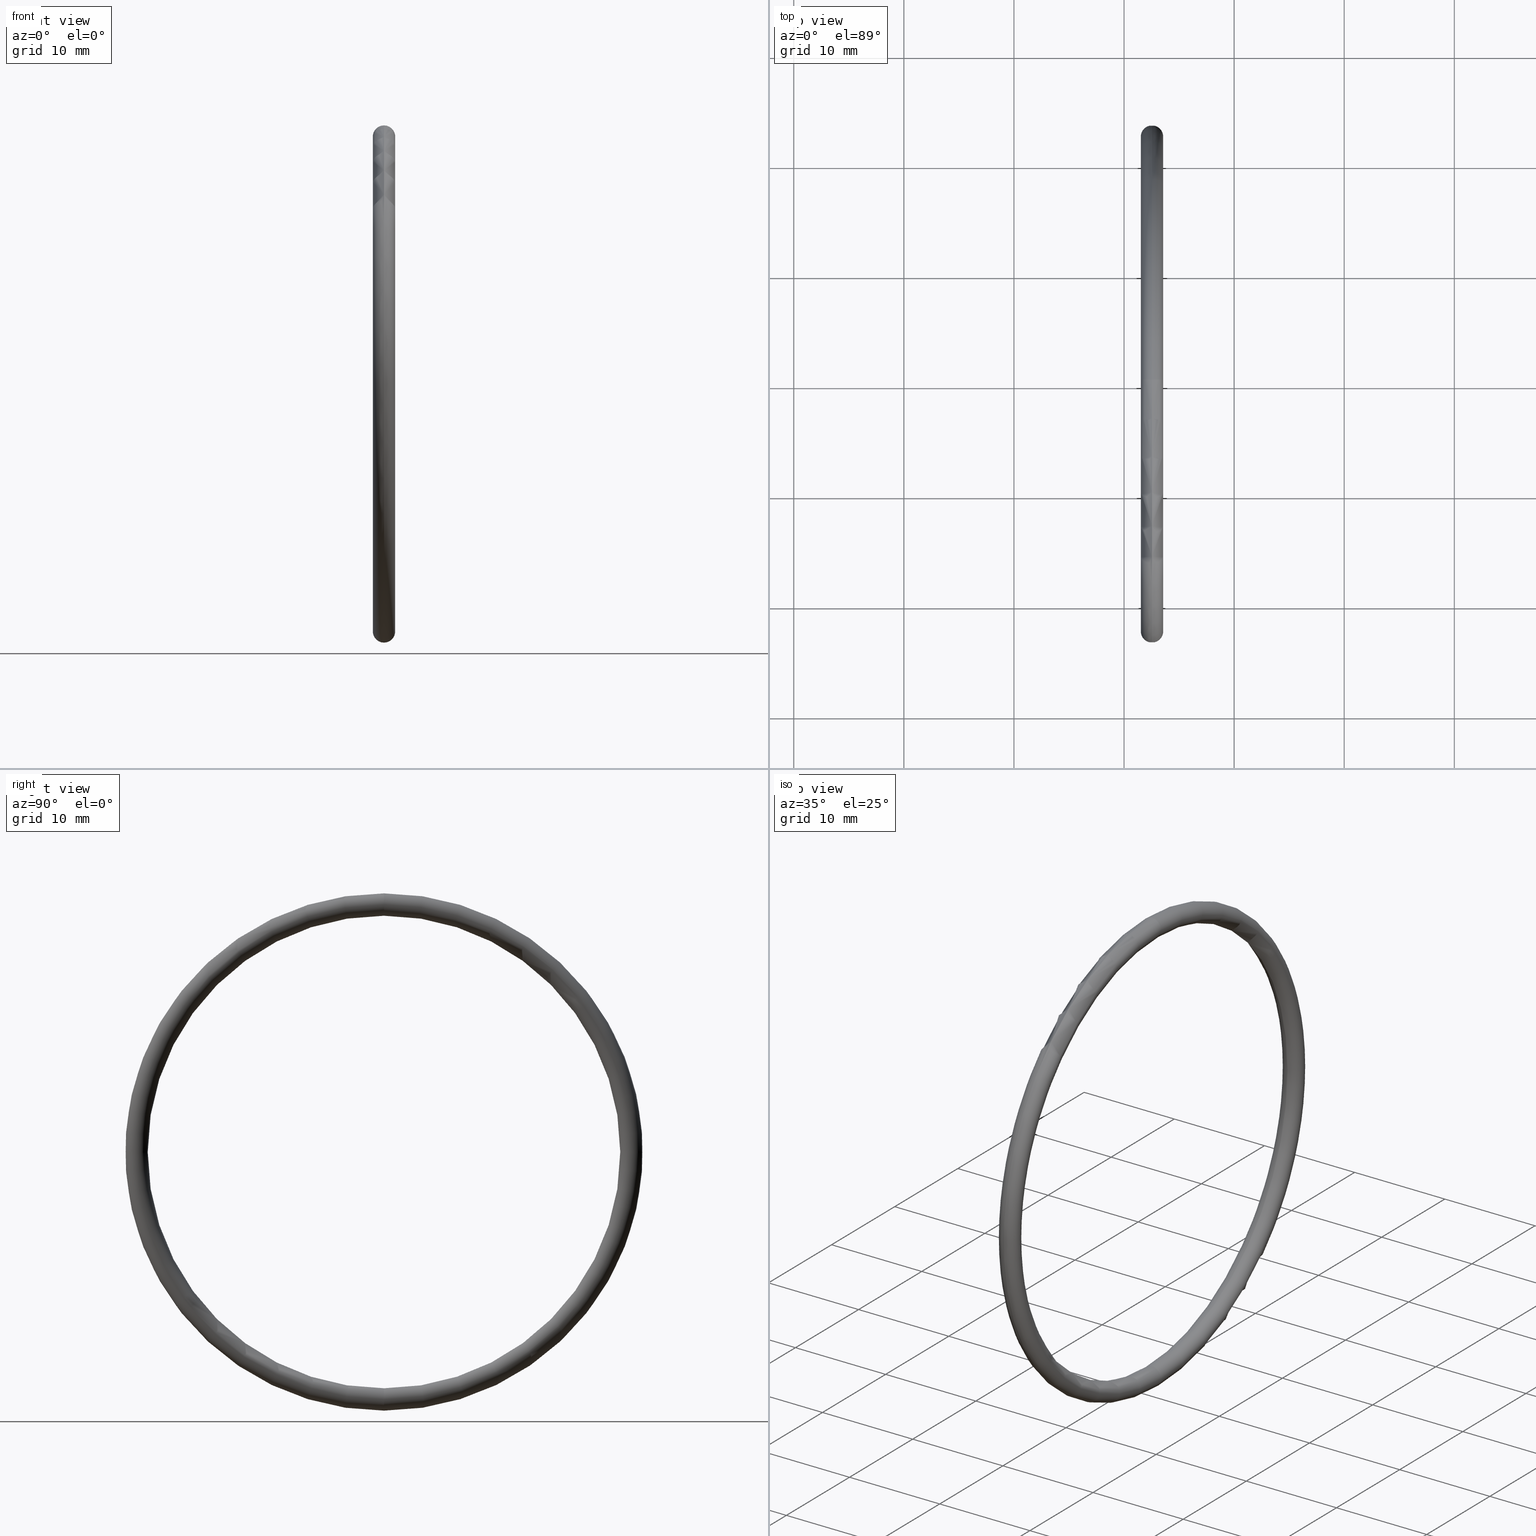
[diagram: canonical four-view strip — front | top / right | iso, engineering-drawing reading convention]
A machine part, canonical four-view strip (front | top / right | iso — engineering-drawing reading convention). The complete STEP part file that produces these views, byte-faithful:
ISO-10303-21;
HEADER;
FILE_DESCRIPTION (( 'STEP AP203' ),
    '1' );
FILE_NAME ('OM-50-BN.STEP',
    '2008-03-29T08:08:24',
    ( 'Baystate-05' ),
    ( 'BayState InfoTech' ),
    'SwSTEP 2.0',
    'SolidWorks 2007',
    '' );
FILE_SCHEMA (( 'CONFIG_CONTROL_DESIGN' ));
ENDSEC;

DATA;
#1 = DIRECTION ( 'NONE',  ( 0.0000000000000000000, 0.0000000000000000000, -1.000000000000000000 ) ) ;
#2 = DIRECTION ( 'NONE',  ( 0.0000000000000000000, -1.000000000000000000, 0.0000000000000000000 ) ) ;
#3 = AXIS2_PLACEMENT_3D ( 'NONE', #5, #2, #1 ) ;
#4 = CIRCLE ( 'NONE', #3, 0.03999999999999998000 ) ;
#5 = CARTESIAN_POINT ( 'NONE',  ( 0.1000000000000001300, 0.0000000000000000000, 0.8850000000000000100 ) ) ;
#6 = DIRECTION ( 'NONE',  ( -1.000000000000000000, 0.0000000000000000000, 0.0000000000000000000 ) ) ;
#7 = CARTESIAN_POINT ( 'NONE',  ( 0.1000000000000001300, 0.0000000000000000000, 0.0000000000000000000 ) ) ;
#8 = AXIS2_PLACEMENT_3D ( 'NONE', #7, #6, #9 ) ;
#9 = DIRECTION ( 'NONE',  ( 0.0000000000000000000, 0.0000000000000000000, 1.000000000000000000 ) ) ;
#10 = CARTESIAN_POINT ( 'NONE',  ( 0.1000000000000001300, 0.0000000000000000000, 0.8449999999999999700 ) ) ;
#11 = CARTESIAN_POINT ( 'NONE',  ( 0.1000000000000001300, 0.0000000000000000000, 0.9249999999999999300 ) ) ;
#12 = CIRCLE ( 'NONE', #17, 0.8449999999999999700 ) ;
#13 = DIRECTION ( 'NONE',  ( 0.0000000000000000000, 0.0000000000000000000, 1.000000000000000000 ) ) ;
#14 = CARTESIAN_POINT ( 'NONE',  ( 0.1000000000000001300, 0.0000000000000000000, 0.0000000000000000000 ) ) ;
#15 = DIRECTION ( 'NONE',  ( 0.0000000000000000000, 1.000000000000000000, 1.224646799147353200E-016 ) ) ;
#16 = DIRECTION ( 'NONE',  ( -1.000000000000000000, 0.0000000000000000000, 0.0000000000000000000 ) ) ;
#17 = AXIS2_PLACEMENT_3D ( 'NONE', #14, #16, #13 ) ;
#18 = CARTESIAN_POINT ( 'NONE',  ( 0.1000000000000001300, 1.083812417245407700E-016, -0.8850000000000000100 ) ) ;
#19 = DIRECTION ( 'NONE',  ( 0.0000000000000000000, -1.224646799147354900E-016, 1.000000000000000000 ) ) ;
#20 = AXIS2_PLACEMENT_3D ( 'NONE', #18, #15, #19 ) ;
#21 = AXIS2_PLACEMENT_3D ( 'NONE', #22, #24, #23 ) ;
#22 = CARTESIAN_POINT ( 'NONE',  ( 0.1000000000000001300, 0.0000000000000000000, 0.0000000000000000000 ) ) ;
#23 = DIRECTION ( 'NONE',  ( 0.0000000000000000000, 0.0000000000000000000, 1.000000000000000000 ) ) ;
#24 = DIRECTION ( 'NONE',  ( -1.000000000000000000, 0.0000000000000000000, 0.0000000000000000000 ) ) ;
#25 =( NAMED_UNIT ( * ) PLANE_ANGLE_UNIT ( ) SI_UNIT ( $, .RADIAN. ) );
#26 =( NAMED_UNIT ( * ) SI_UNIT ( $, .STERADIAN. ) SOLID_ANGLE_UNIT ( ) );
#27 = DIRECTION ( 'NONE',  ( 0.0000000000000000000, 0.0000000000000000000, 1.000000000000000000 ) ) ;
#28 = DIRECTION ( 'NONE',  ( -1.000000000000000000, 0.0000000000000000000, 0.0000000000000000000 ) ) ;
#29 = TOROIDAL_SURFACE ( 'NONE', #33, 0.8850000000000000100, 0.03999999999999997300 ) ;
#30 = UNCERTAINTY_MEASURE_WITH_UNIT (LENGTH_MEASURE( 1.000000000000000100E-005 ), #57, 'distance_accuracy_value', 'NONE');
#31 = FACE_OUTER_BOUND ( 'NONE', #180, .T. ) ;
#32 = CARTESIAN_POINT ( 'NONE',  ( 0.1000000000000001300, 0.0000000000000000000, 0.0000000000000000000 ) ) ;
#33 = AXIS2_PLACEMENT_3D ( 'NONE', #32, #28, #27 ) ;
#34 =( GEOMETRIC_REPRESENTATION_CONTEXT ( 3 ) GLOBAL_UNCERTAINTY_ASSIGNED_CONTEXT ( ( #30 ) ) GLOBAL_UNIT_ASSIGNED_CONTEXT ( ( #57, #25, #26 ) ) REPRESENTATION_CONTEXT ( 'NONE', 'WORKASPACE' ) );
#35 = ADVANCED_BREP_SHAPE_REPRESENTATION ( 'OM-50-BN', ( #188, #122 ), #34 ) ;
#36 = AXIS2_PLACEMENT_3D ( 'NONE', #38, #37, #46 ) ;
#37 = DIRECTION ( 'NONE',  ( -1.000000000000000000, 0.0000000000000000000, 0.0000000000000000000 ) ) ;
#38 = CARTESIAN_POINT ( 'NONE',  ( 0.1000000000000001300, 0.0000000000000000000, 0.0000000000000000000 ) ) ;
#39 = AXIS2_PLACEMENT_3D ( 'NONE', #44, #43, #42 ) ;
#40 = CIRCLE ( 'NONE', #39, 0.8449999999999999700 ) ;
#41 = CIRCLE ( 'NONE', #36, 0.9249999999999999300 ) ;
#42 = DIRECTION ( 'NONE',  ( 0.0000000000000000000, 0.0000000000000000000, 1.000000000000000000 ) ) ;
#43 = DIRECTION ( 'NONE',  ( -1.000000000000000000, 0.0000000000000000000, 0.0000000000000000000 ) ) ;
#44 = CARTESIAN_POINT ( 'NONE',  ( 0.1000000000000001300, 0.0000000000000000000, 0.0000000000000000000 ) ) ;
#45 = FACE_OUTER_BOUND ( 'NONE', #190, .T. ) ;
#46 = DIRECTION ( 'NONE',  ( 0.0000000000000000000, 0.0000000000000000000, 1.000000000000000000 ) ) ;
#47 = CIRCLE ( 'NONE', #20, 0.03999999999999998000 ) ;
#48 = DIRECTION ( 'NONE',  ( 0.0000000000000000000, 0.0000000000000000000, 1.000000000000000000 ) ) ;
#49 = DIRECTION ( 'NONE',  ( -1.000000000000000000, 0.0000000000000000000, 0.0000000000000000000 ) ) ;
#50 = CARTESIAN_POINT ( 'NONE',  ( 0.1000000000000001300, 0.0000000000000000000, 0.0000000000000000000 ) ) ;
#51 = TOROIDAL_SURFACE ( 'NONE', #52, 0.8850000000000000100, 0.03999999999999997300 ) ;
#52 = AXIS2_PLACEMENT_3D ( 'NONE', #50, #49, #48 ) ;
#53 = TOROIDAL_SURFACE ( 'NONE', #21, 0.8850000000000000100, 0.03999999999999997300 ) ;
#54 = FACE_OUTER_BOUND ( 'NONE', #187, .T. ) ;
#55 = CARTESIAN_POINT ( 'NONE',  ( 0.1000000000000001300, 1.034826545279513500E-016, -0.8449999999999999700 ) ) ;
#56 = CARTESIAN_POINT ( 'NONE',  ( 0.1000000000000001300, 1.132798289211301800E-016, -0.9249999999999999300 ) ) ;
#57 =( CONVERSION_BASED_UNIT ( 'INCH', #58 ) LENGTH_UNIT ( ) NAMED_UNIT ( #59 ) );
#58 = LENGTH_MEASURE_WITH_UNIT ( LENGTH_MEASURE( 0.02539999999999999900 ), #60 );
#59 = DIMENSIONAL_EXPONENTS ( 1.000000000000000000, 0.0000000000000000000, 0.0000000000000000000, 0.0000000000000000000, 0.0000000000000000000, 0.0000000000000000000, 0.0000000000000000000 ) ;
#60 =( LENGTH_UNIT ( ) NAMED_UNIT ( * ) SI_UNIT ( $, .METRE. ) );
#61 = PRODUCT_DEFINITION_SHAPE ( 'NONE', 'NONE',  #128 ) ;
#62 = PRODUCT_RELATED_PRODUCT_CATEGORY ( 'detail', '', ( #138 ) ) ;
#63 = CC_DESIGN_SECURITY_CLASSIFICATION ( #84, ( #103 ) ) ;
#64 = CC_DESIGN_APPROVAL ( #72, ( #84 ) ) ;
#65 = APPROVAL_DATE_TIME ( #66, #72 ) ;
#66 = DATE_AND_TIME ( #67, #68 ) ;
#67 = CALENDAR_DATE ( 2008, 29, 3 ) ;
#68 = LOCAL_TIME ( 13, 38, 24.00000000000000000, #69 ) ;
#69 = COORDINATED_UNIVERSAL_TIME_OFFSET ( 5, 30, .AHEAD. ) ;
#70 = APPROVAL_PERSON_ORGANIZATION ( #74, #72, #71 ) ;
#71 = APPROVAL_ROLE ( '' ) ;
#72 = APPROVAL ( #73, 'UNSPECIFIED' ) ;
#73 = APPROVAL_STATUS ( 'not_yet_approved' ) ;
#74 = PERSON_AND_ORGANIZATION ( #137, #136 ) ;
#75 = CC_DESIGN_DATE_AND_TIME_ASSIGNMENT ( #77, #76, ( #84 ) ) ;
#76 = DATE_TIME_ROLE ( 'classification_date' ) ;
#77 = DATE_AND_TIME ( #78, #79 ) ;
#78 = CALENDAR_DATE ( 2008, 29, 3 ) ;
#79 = LOCAL_TIME ( 13, 38, 24.00000000000000000, #80 ) ;
#80 = COORDINATED_UNIVERSAL_TIME_OFFSET ( 5, 30, .AHEAD. ) ;
#81 = CC_DESIGN_PERSON_AND_ORGANIZATION_ASSIGNMENT ( #83, #82, ( #84 ) ) ;
#82 = PERSON_AND_ORGANIZATION_ROLE ( 'classification_officer' ) ;
#83 = PERSON_AND_ORGANIZATION ( #137, #136 ) ;
#84 = SECURITY_CLASSIFICATION ( '', '', #85 ) ;
#85 = SECURITY_CLASSIFICATION_LEVEL ( 'unclassified' ) ;
#86 = CC_DESIGN_PERSON_AND_ORGANIZATION_ASSIGNMENT ( #88, #87, ( #103 ) ) ;
#87 = PERSON_AND_ORGANIZATION_ROLE ( 'design_supplier' ) ;
#88 = PERSON_AND_ORGANIZATION ( #137, #136 ) ;
#89 = CC_DESIGN_PERSON_AND_ORGANIZATION_ASSIGNMENT ( #91, #90, ( #103 ) ) ;
#90 = PERSON_AND_ORGANIZATION_ROLE ( 'creator' ) ;
#91 = PERSON_AND_ORGANIZATION ( #137, #136 ) ;
#92 = CC_DESIGN_APPROVAL ( #100, ( #103 ) ) ;
#93 = APPROVAL_DATE_TIME ( #94, #100 ) ;
#94 = DATE_AND_TIME ( #95, #96 ) ;
#95 = CALENDAR_DATE ( 2008, 29, 3 ) ;
#96 = LOCAL_TIME ( 13, 38, 24.00000000000000000, #97 ) ;
#97 = COORDINATED_UNIVERSAL_TIME_OFFSET ( 5, 30, .AHEAD. ) ;
#98 = APPROVAL_PERSON_ORGANIZATION ( #102, #100, #99 ) ;
#99 = APPROVAL_ROLE ( '' ) ;
#100 = APPROVAL ( #101, 'UNSPECIFIED' ) ;
#101 = APPROVAL_STATUS ( 'not_yet_approved' ) ;
#102 = PERSON_AND_ORGANIZATION ( #137, #136 ) ;
#103 = PRODUCT_DEFINITION_FORMATION_WITH_SPECIFIED_SOURCE ( 'ANY', '', #138, .NOT_KNOWN. ) ;
#104 = CC_DESIGN_DATE_AND_TIME_ASSIGNMENT ( #106, #105, ( #128 ) ) ;
#105 = DATE_TIME_ROLE ( 'creation_date' ) ;
#106 = DATE_AND_TIME ( #107, #108 ) ;
#107 = CALENDAR_DATE ( 2008, 29, 3 ) ;
#108 = LOCAL_TIME ( 13, 38, 24.00000000000000000, #109 ) ;
#109 = COORDINATED_UNIVERSAL_TIME_OFFSET ( 5, 30, .AHEAD. ) ;
#110 = CC_DESIGN_PERSON_AND_ORGANIZATION_ASSIGNMENT ( #112, #111, ( #128 ) ) ;
#111 = PERSON_AND_ORGANIZATION_ROLE ( 'creator' ) ;
#112 = PERSON_AND_ORGANIZATION ( #137, #136 ) ;
#113 = CC_DESIGN_APPROVAL ( #121, ( #128 ) ) ;
#114 = APPROVAL_DATE_TIME ( #115, #121 ) ;
#115 = DATE_AND_TIME ( #116, #117 ) ;
#116 = CALENDAR_DATE ( 2008, 29, 3 ) ;
#117 = LOCAL_TIME ( 13, 38, 24.00000000000000000, #118 ) ;
#118 = COORDINATED_UNIVERSAL_TIME_OFFSET ( 5, 30, .AHEAD. ) ;
#119 = APPROVAL_PERSON_ORGANIZATION ( #127, #121, #120 ) ;
#120 = APPROVAL_ROLE ( '' ) ;
#121 = APPROVAL ( #126, 'UNSPECIFIED' ) ;
#122 = AXIS2_PLACEMENT_3D ( 'NONE', #123, #125, #124 ) ;
#123 = CARTESIAN_POINT ( 'NONE',  ( 0.0000000000000000000, 0.0000000000000000000, 0.0000000000000000000 ) ) ;
#124 = DIRECTION ( 'NONE',  ( 1.000000000000000000, 0.0000000000000000000, 0.0000000000000000000 ) ) ;
#125 = DIRECTION ( 'NONE',  ( 0.0000000000000000000, 0.0000000000000000000, 1.000000000000000000 ) ) ;
#126 = APPROVAL_STATUS ( 'not_yet_approved' ) ;
#127 = PERSON_AND_ORGANIZATION ( #137, #136 ) ;
#128 = PRODUCT_DEFINITION ( 'UNKNOWN', '', #103, #129 ) ;
#129 = DESIGN_CONTEXT ( 'detailed design', #131, 'design' ) ;
#130 = APPLICATION_PROTOCOL_DEFINITION ( 'international standard', 'config_control_design', 1994, #131 ) ;
#131 = APPLICATION_CONTEXT ( 'configuration controlled 3d designs of mechanical parts and assemblies' ) ;
#132 = SHAPE_DEFINITION_REPRESENTATION ( #61, #35 ) ;
#133 = CC_DESIGN_PERSON_AND_ORGANIZATION_ASSIGNMENT ( #135, #134, ( #138 ) ) ;
#134 = PERSON_AND_ORGANIZATION_ROLE ( 'design_owner' ) ;
#135 = PERSON_AND_ORGANIZATION ( #137, #136 ) ;
#136 = ORGANIZATION ( 'UNSPECIFIED', 'UNSPECIFIED', '' ) ;
#137 = PERSON ( 'UNSPECIFIED', 'UNSPECIFIED', 'UNSPECIFIED', ('UNSPECIFIED'), ('UNSPECIFIED'), ('UNSPECIFIED') ) ;
#138 = PRODUCT ( 'OM-50-BN', 'OM-50-BN', '', ( #139 ) ) ;
#139 = MECHANICAL_CONTEXT ( 'NONE', #141, 'mechanical' ) ;
#140 = APPLICATION_PROTOCOL_DEFINITION ( 'international standard', 'config_control_design', 1994, #141 ) ;
#141 = APPLICATION_CONTEXT ( 'configuration controlled 3d designs of mechanical parts and assemblies' ) ;
#142 = ORIENTED_EDGE ( 'NONE', *, *, #143, .F. ) ;
#143 = EDGE_CURVE ( 'NONE', #157, #156, #174, .T. ) ;
#144 = ORIENTED_EDGE ( 'NONE', *, *, #186, .T. ) ;
#145 = ORIENTED_EDGE ( 'NONE', *, *, #146, .T. ) ;
#146 = EDGE_CURVE ( 'NONE', #194, #193, #169, .T. ) ;
#147 = ADVANCED_FACE ( 'NONE', ( #164 ), #163, .T. ) ;
#148 = EDGE_LOOP ( 'NONE', ( #149, #150, #151, #152 ) ) ;
#149 = ORIENTED_EDGE ( 'NONE', *, *, #155, .F. ) ;
#150 = ORIENTED_EDGE ( 'NONE', *, *, #146, .F. ) ;
#151 = ORIENTED_EDGE ( 'NONE', *, *, #178, .T. ) ;
#152 = ORIENTED_EDGE ( 'NONE', *, *, #143, .T. ) ;
#153 = CLOSED_SHELL ( 'NONE', ( #189, #179, #195, #147 ) ) ;
#154 = ORIENTED_EDGE ( 'NONE', *, *, #155, .T. ) ;
#155 = EDGE_CURVE ( 'NONE', #193, #156, #158, .T. ) ;
#156 = VERTEX_POINT ( 'NONE', #11 ) ;
#157 = VERTEX_POINT ( 'NONE', #10 ) ;
#158 = CIRCLE ( 'NONE', #8, 0.9249999999999999300 ) ;
#159 = DIRECTION ( 'NONE',  ( 0.0000000000000000000, 0.0000000000000000000, 1.000000000000000000 ) ) ;
#160 = DIRECTION ( 'NONE',  ( -1.000000000000000000, 0.0000000000000000000, 0.0000000000000000000 ) ) ;
#161 = CARTESIAN_POINT ( 'NONE',  ( 0.1000000000000001300, 0.0000000000000000000, 0.0000000000000000000 ) ) ;
#162 = AXIS2_PLACEMENT_3D ( 'NONE', #161, #160, #159 ) ;
#163 = TOROIDAL_SURFACE ( 'NONE', #162, 0.8850000000000000100, 0.03999999999999997300 ) ;
#164 = FACE_OUTER_BOUND ( 'NONE', #148, .T. ) ;
#165 = DIRECTION ( 'NONE',  ( 0.0000000000000000000, -1.224646799147354900E-016, 1.000000000000000000 ) ) ;
#166 = DIRECTION ( 'NONE',  ( 0.0000000000000000000, 1.000000000000000000, 1.224646799147353200E-016 ) ) ;
#167 = CARTESIAN_POINT ( 'NONE',  ( 0.1000000000000001300, 1.083812417245407700E-016, -0.8850000000000000100 ) ) ;
#168 = AXIS2_PLACEMENT_3D ( 'NONE', #167, #166, #165 ) ;
#169 = CIRCLE ( 'NONE', #168, 0.03999999999999998000 ) ;
#170 = DIRECTION ( 'NONE',  ( 0.0000000000000000000, 0.0000000000000000000, -1.000000000000000000 ) ) ;
#171 = DIRECTION ( 'NONE',  ( 0.0000000000000000000, -1.000000000000000000, 0.0000000000000000000 ) ) ;
#172 = CARTESIAN_POINT ( 'NONE',  ( 0.1000000000000001300, 0.0000000000000000000, 0.8850000000000000100 ) ) ;
#173 = AXIS2_PLACEMENT_3D ( 'NONE', #172, #171, #170 ) ;
#174 = CIRCLE ( 'NONE', #173, 0.03999999999999998000 ) ;
#175 = ORIENTED_EDGE ( 'NONE', *, *, #176, .T. ) ;
#176 = EDGE_CURVE ( 'NONE', #156, #157, #4, .T. ) ;
#177 = ORIENTED_EDGE ( 'NONE', *, *, #178, .F. ) ;
#178 = EDGE_CURVE ( 'NONE', #194, #157, #12, .T. ) ;
#179 = ADVANCED_FACE ( 'NONE', ( #31 ), #29, .T. ) ;
#180 = EDGE_LOOP ( 'NONE', ( #181, #182, #184, #185 ) ) ;
#181 = ORIENTED_EDGE ( 'NONE', *, *, #176, .F. ) ;
#182 = ORIENTED_EDGE ( 'NONE', *, *, #183, .T. ) ;
#183 = EDGE_CURVE ( 'NONE', #156, #193, #41, .T. ) ;
#184 = ORIENTED_EDGE ( 'NONE', *, *, #192, .T. ) ;
#185 = ORIENTED_EDGE ( 'NONE', *, *, #186, .F. ) ;
#186 = EDGE_CURVE ( 'NONE', #157, #194, #40, .T. ) ;
#187 = EDGE_LOOP ( 'NONE', ( #196, #142, #144, #145 ) ) ;
#188 = MANIFOLD_SOLID_BREP ( 'NONE', #153 ) ;
#189 = ADVANCED_FACE ( 'NONE', ( #45 ), #51, .T. ) ;
#190 = EDGE_LOOP ( 'NONE', ( #191, #154, #175, #177 ) ) ;
#191 = ORIENTED_EDGE ( 'NONE', *, *, #192, .F. ) ;
#192 = EDGE_CURVE ( 'NONE', #193, #194, #47, .T. ) ;
#193 = VERTEX_POINT ( 'NONE', #56 ) ;
#194 = VERTEX_POINT ( 'NONE', #55 ) ;
#195 = ADVANCED_FACE ( 'NONE', ( #54 ), #53, .T. ) ;
#196 = ORIENTED_EDGE ( 'NONE', *, *, #183, .F. ) ;
ENDSEC;
END-ISO-10303-21;
